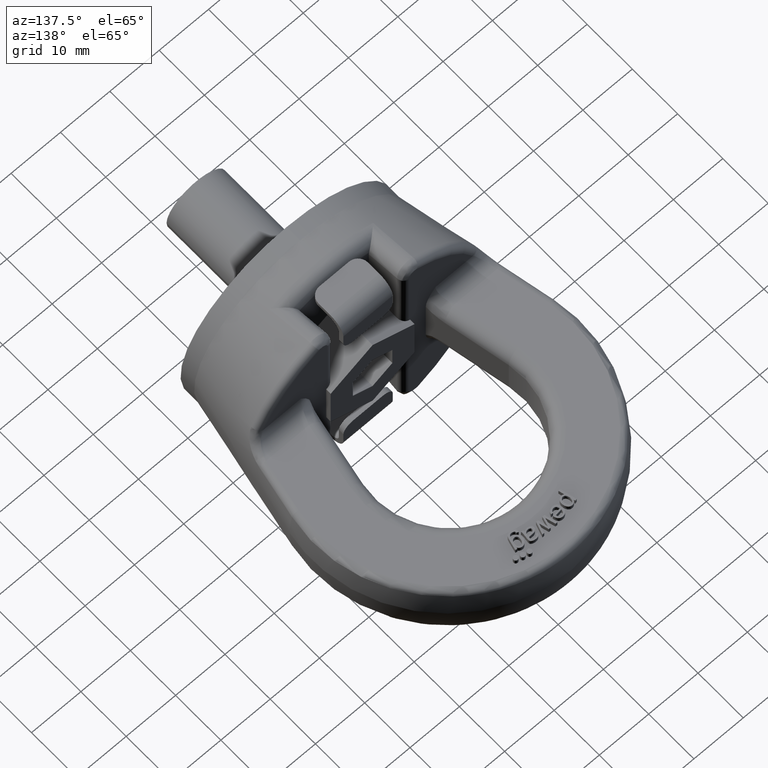
[diagram: clean part render]
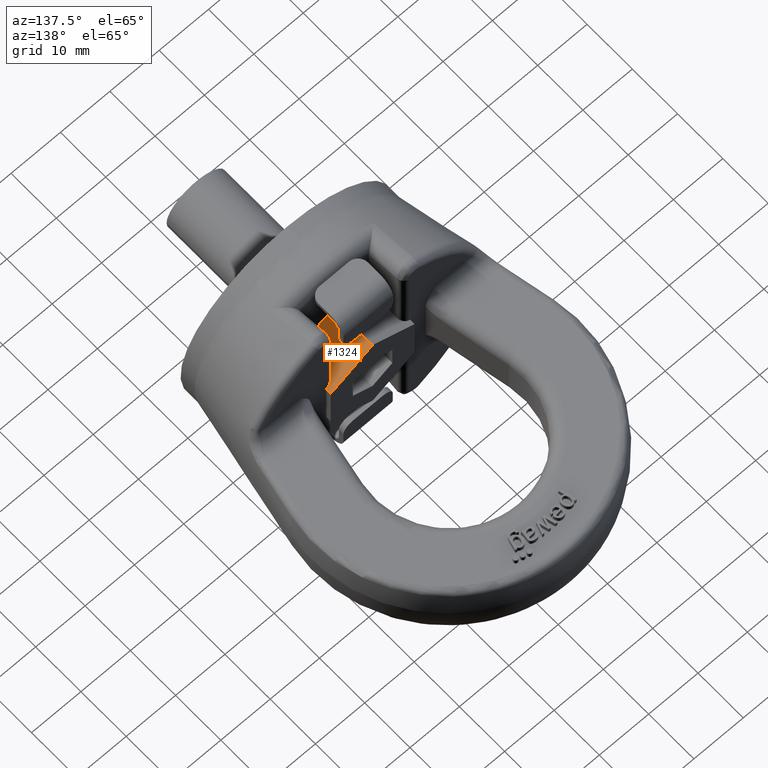
[diagram: same view with one face highlighted and labeled with its STEP entity id]
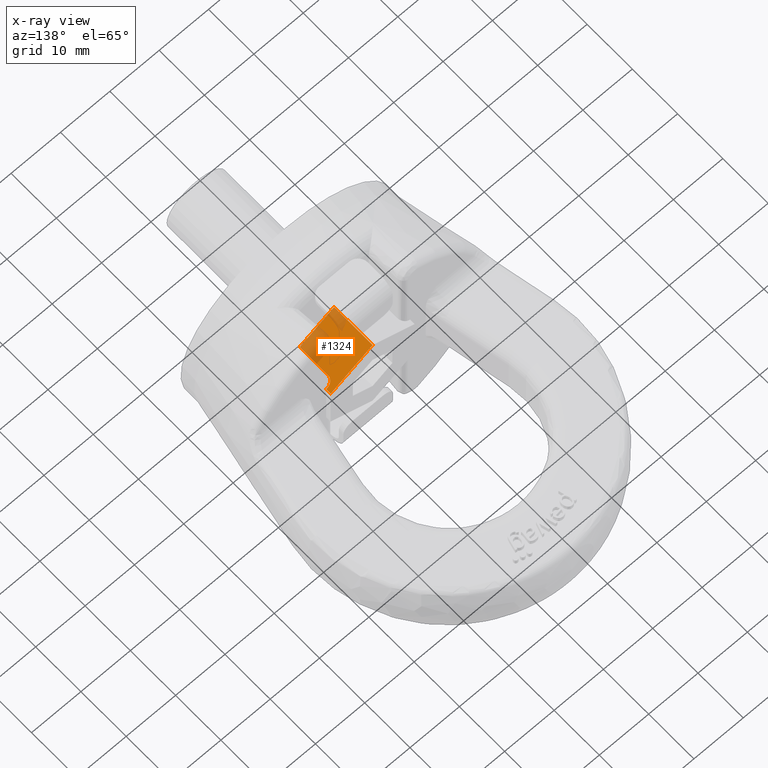
[diagram: x-ray of the same camera — body ghosted, the highlighted face saturated]
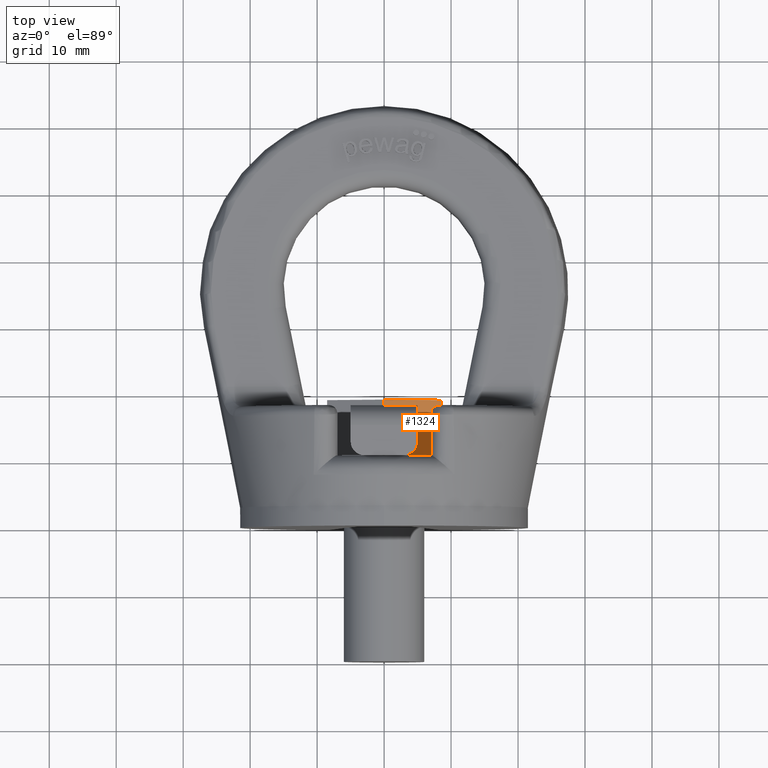
[diagram: same view with one face highlighted and labeled with its STEP entity id]
A machine part, auxiliary view. The second image highlights one B-rep face of the part: STEP entity #1324.
The next image is the same camera in x-ray: the body ghosted, the highlighted face saturated — about 29% of this face is hidden behind the body in this view.
A second angle (top view) of the same face is appended — the face is thin or edge-on in the first view.
In plain terms, the highlighted planar face has unit normal (-0.5, 0, -0.866).
Its self-contained STEP definition (entity closure, byte-faithful):
#1048=ELLIPSE('',#5161,1.3856406460551,1.2);
#1101=FACE_OUTER_BOUND('',#1839,.T.);
#1324=ADVANCED_FACE('',(#1101),#1559,.F.);
#1559=PLANE('',#5162);
#1839=EDGE_LOOP('',(#2859,#2860,#2861,#2862,#2863,#2864,#2865));
#2118=LINE('',#6540,#2398);
#2137=LINE('',#6654,#2417);
#2140=LINE('',#6668,#2420);
#2141=LINE('',#6670,#2421);
#2156=LINE('',#6885,#2436);
#2157=LINE('',#6888,#2437);
#2398=VECTOR('',#5428,1.);
#2417=VECTOR('',#5459,1.);
#2420=VECTOR('',#5464,1.);
#2421=VECTOR('',#5467,1.);
#2436=VECTOR('',#5540,1.);
#2437=VECTOR('',#5545,1.);
#2859=ORIENTED_EDGE('',*,*,#4353,.F.);
#2860=ORIENTED_EDGE('',*,*,#4357,.F.);
#2861=ORIENTED_EDGE('',*,*,#4411,.T.);
#2862=ORIENTED_EDGE('',*,*,#4358,.F.);
#2863=ORIENTED_EDGE('',*,*,#4410,.T.);
#2864=ORIENTED_EDGE('',*,*,#4324,.T.);
#2865=ORIENTED_EDGE('',*,*,#4412,.F.);
#3932=VERTEX_POINT('',#6531);
#3936=VERTEX_POINT('',#6539);
#3964=VERTEX_POINT('',#6653);
#3965=VERTEX_POINT('',#6655);
#3967=VERTEX_POINT('',#6667);
#3968=VERTEX_POINT('',#6671);
#3969=VERTEX_POINT('',#6672);
#4324=EDGE_CURVE('',#3932,#3936,#2118,.T.);
#4353=EDGE_CURVE('',#3964,#3965,#2137,.T.);
#4357=EDGE_CURVE('',#3967,#3964,#2140,.T.);
#4358=EDGE_CURVE('',#3968,#3969,#2141,.T.);
#4410=EDGE_CURVE('',#3968,#3932,#2156,.T.);
#4411=EDGE_CURVE('',#3967,#3969,#1048,.T.);
#4412=EDGE_CURVE('',#3965,#3936,#2157,.T.);
#5161=AXIS2_PLACEMENT_3D('',#6887,#5543,#5544);
#5162=AXIS2_PLACEMENT_3D('',#6889,#5546,#5547);
#5428=DIRECTION('',(-0.866025403784442,0.,0.499999999999994));
#5459=DIRECTION('',(-0.866025403784442,-1.07308185624083E-16,0.499999999999994));
#5464=DIRECTION('',(0.,-1.,0.));
#5467=DIRECTION('',(-0.866025403784442,-1.28615169014872E-15,0.499999999999994));
#5540=DIRECTION('',(0.,1.,0.));
#5543=DIRECTION('',(-0.499999999999994,0.,-0.866025403784442));
#5544=DIRECTION('',(-0.866025403784442,0.,0.499999999999994));
#5545=DIRECTION('',(0.,1.,0.));
#5546=DIRECTION('',(-0.499999999999994,0.,-0.866025403784442));
#5547=DIRECTION('',(-0.866025403784442,0.,0.499999999999994));
#6531=CARTESIAN_POINT('',(8.5,19.,4.90747728811183));
#6539=CARTESIAN_POINT('',(-1.73472347597681E-15,19.,9.81495457622357));
#6540=CARTESIAN_POINT('',(8.5,19.,4.90747728811183));
#6653=CARTESIAN_POINT('',(7.,10.5,5.77350269189626));
#6654=CARTESIAN_POINT('',(-14.0986342322396,10.5,17.9548048454131));
#6655=CARTESIAN_POINT('',(-1.73472347597681E-15,10.5,9.81495457622357));
#6667=CARTESIAN_POINT('',(7.,16.8,5.77350269189626));
#6668=CARTESIAN_POINT('',(7.,10.5,5.77350269189626));
#6670=CARTESIAN_POINT('',(-3.59863423223956,18.,11.8926270189221));
#6671=CARTESIAN_POINT('',(8.5,18.,4.90747728811183));
#6672=CARTESIAN_POINT('',(8.2,18.,5.08068236886872));
#6885=CARTESIAN_POINT('',(8.5,1.4,4.90747728811183));
#6887=CARTESIAN_POINT('',(8.2,16.8,5.08068236886871));
#6888=CARTESIAN_POINT('',(-1.73472347597681E-15,1.4,9.81495457622357));
#6889=CARTESIAN_POINT('',(8.5,1.4,4.90747728811183));